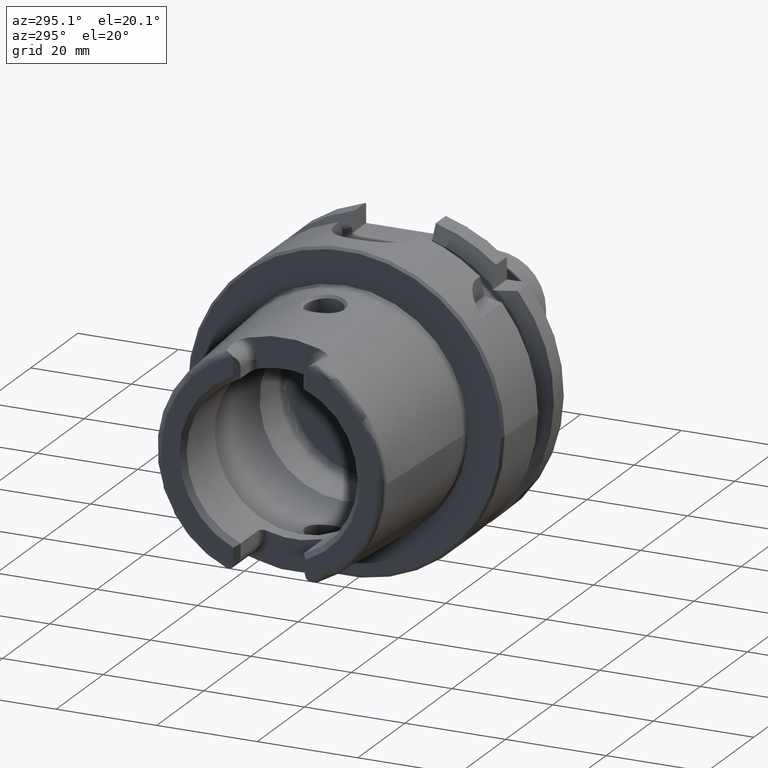
[diagram: clean part render]
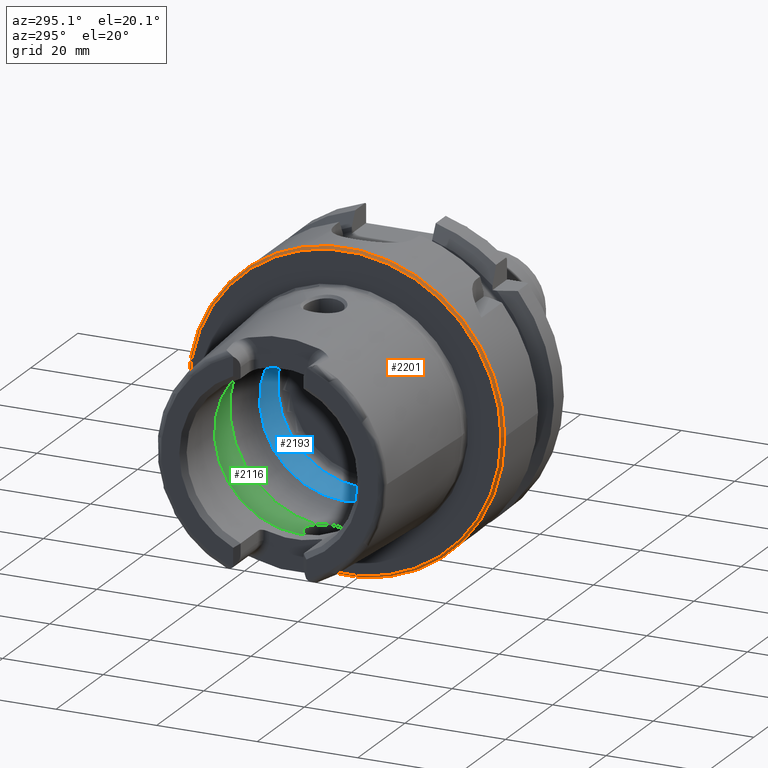
[diagram: same view with three faces highlighted in distinct colors, each labeled with its STEP entity id]
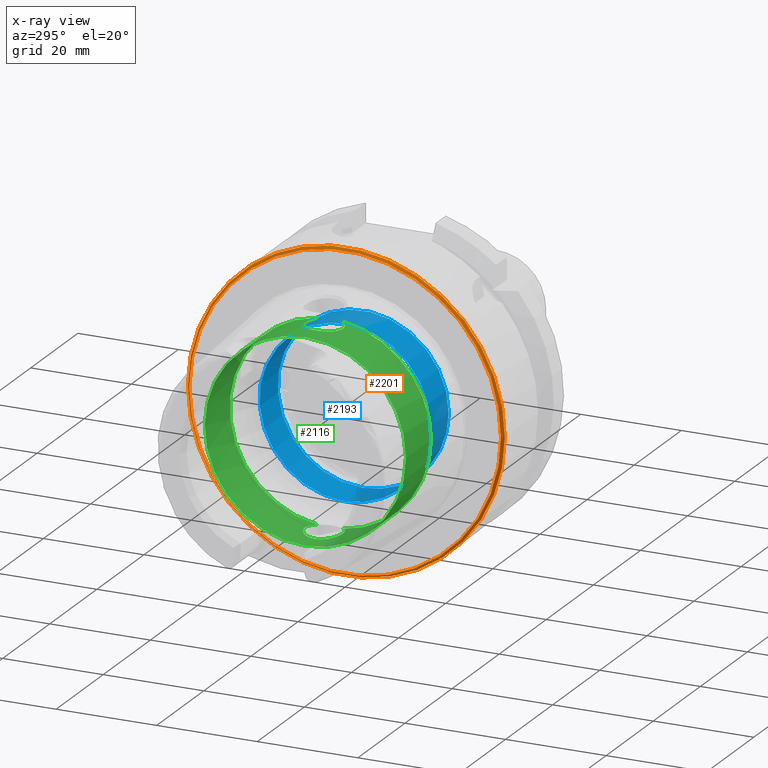
[diagram: x-ray of the same camera — body ghosted, the three highlighted faces saturated]
A machine part, auxiliary view with three faces highlighted in distinct colors.
The next image is the same camera in x-ray (body ghosted, the three faces saturated) — at least one of them is partly hidden behind the body in this view.
Their STEP definitions:

[orange] entity #2201 — the highlighted conical surface has half-angle 45 deg.
#351=FACE_OUTER_BOUND('',#492,.T.);
#492=EDGE_LOOP('',(#2058,#2059,#2060,#2061));
#602=LINE('',#4822,#712);
#712=VECTOR('',#3128,31.25);
#781=CIRCLE('',#2346,31.5);
#848=CIRCLE('',#2487,31.);
#992=VERTEX_POINT('',#4336);
#1065=VERTEX_POINT('',#4819);
#1253=EDGE_CURVE('',#992,#992,#781,.T.);
#1396=EDGE_CURVE('',#1065,#1065,#848,.T.);
#1397=EDGE_CURVE('',#992,#1065,#602,.T.);
#2058=ORIENTED_EDGE('',*,*,#1253,.F.);
#2059=ORIENTED_EDGE('',*,*,#1397,.T.);
#2060=ORIENTED_EDGE('',*,*,#1396,.T.);
#2061=ORIENTED_EDGE('',*,*,#1397,.F.);
#2076=CONICAL_SURFACE('',#2488,31.25,0.785398163397447);
#2201=ADVANCED_FACE('',(#351),#2076,.T.);
#2346=AXIS2_PLACEMENT_3D('',#4338,#2798,#2799);
#2487=AXIS2_PLACEMENT_3D('',#4820,#3124,#3125);
#2488=AXIS2_PLACEMENT_3D('',#4821,#3126,#3127);
#2798=DIRECTION('center_axis',(1.,0.,0.));
#2799=DIRECTION('ref_axis',(0.,0.,-1.));
#3124=DIRECTION('center_axis',(1.,0.,0.));
#3125=DIRECTION('ref_axis',(0.,0.,-1.));
#3126=DIRECTION('center_axis',(1.,0.,0.));
#3127=DIRECTION('ref_axis',(0.,1.,0.));
#3128=DIRECTION('',(-0.707106781186549,0.707106781186546,8.65956056235492E-17));
#4336=CARTESIAN_POINT('',(0.5,-31.5,-3.85763741731416E-15));
#4338=CARTESIAN_POINT('Origin',(0.5,0.,0.));
#4819=CARTESIAN_POINT('',(-1.04083408558608E-15,-31.,-3.7964050773568E-15));
#4820=CARTESIAN_POINT('Origin',(0.,0.,0.));
#4821=CARTESIAN_POINT('Origin',(0.249999999999999,0.,0.));
#4822=CARTESIAN_POINT('',(0.249999999999999,-31.25,-3.82702124733548E-15));

[blue] entity #2193 — the highlighted cylindrical surface (bore or boss wall) has radius 17 mm, axis along (-1, 0, 0).
#225=CYLINDRICAL_SURFACE('',#2468,17.);
#343=FACE_OUTER_BOUND('',#483,.T.);
#483=EDGE_LOOP('',(#2018,#2019,#2020,#2021,#2022,#2023));
#598=LINE('',#4789,#708);
#708=VECTOR('',#3084,17.);
#769=CIRCLE('',#2325,17.);
#770=CIRCLE('',#2326,17.);
#835=CIRCLE('',#2466,17.);
#836=CIRCLE('',#2467,17.);
#959=VERTEX_POINT('',#4148);
#960=VERTEX_POINT('',#4149);
#1055=VERTEX_POINT('',#4783);
#1056=VERTEX_POINT('',#4785);
#1212=EDGE_CURVE('',#959,#960,#769,.T.);
#1213=EDGE_CURVE('',#960,#959,#770,.T.);
#1379=EDGE_CURVE('',#1055,#1056,#835,.T.);
#1380=EDGE_CURVE('',#1056,#1055,#836,.T.);
#1381=EDGE_CURVE('',#1056,#959,#598,.T.);
#2018=ORIENTED_EDGE('',*,*,#1380,.F.);
#2019=ORIENTED_EDGE('',*,*,#1381,.T.);
#2020=ORIENTED_EDGE('',*,*,#1212,.T.);
#2021=ORIENTED_EDGE('',*,*,#1213,.T.);
#2022=ORIENTED_EDGE('',*,*,#1381,.F.);
#2023=ORIENTED_EDGE('',*,*,#1379,.F.);
#2193=ADVANCED_FACE('',(#343),#225,.F.);
#2325=AXIS2_PLACEMENT_3D('',#4150,#2739,#2740);
#2326=AXIS2_PLACEMENT_3D('',#4151,#2741,#2742);
#2466=AXIS2_PLACEMENT_3D('',#4786,#3078,#3079);
#2467=AXIS2_PLACEMENT_3D('',#4787,#3080,#3081);
#2468=AXIS2_PLACEMENT_3D('',#4788,#3082,#3083);
#2739=DIRECTION('center_axis',(-1.,0.,0.));
#2740=DIRECTION('ref_axis',(0.,0.,1.));
#2741=DIRECTION('center_axis',(-1.,0.,0.));
#2742=DIRECTION('ref_axis',(0.,0.,1.));
#3078=DIRECTION('center_axis',(-1.,0.,0.));
#3079=DIRECTION('ref_axis',(0.,0.,1.));
#3080=DIRECTION('center_axis',(-1.,0.,0.));
#3081=DIRECTION('ref_axis',(0.,0.,1.));
#3082=DIRECTION('center_axis',(-1.,0.,0.));
#3083=DIRECTION('ref_axis',(0.,1.,0.));
#3084=DIRECTION('',(-1.,0.,0.));
#4148=CARTESIAN_POINT('',(-0.0550020016016006,-17.,2.0818995585505E-15));
#4149=CARTESIAN_POINT('',(-0.0550020016016006,-2.0818995585505E-15,-17.));
#4150=CARTESIAN_POINT('Origin',(-0.0550020016016006,0.,0.));
#4151=CARTESIAN_POINT('Origin',(-0.0550020016016006,0.,0.));
#4783=CARTESIAN_POINT('',(7.67084380241115,-2.0818995585505E-15,-17.));
#4785=CARTESIAN_POINT('',(7.67084380241115,-17.,2.0818995585505E-15));
#4786=CARTESIAN_POINT('Origin',(7.67084380241115,0.,0.));
#4787=CARTESIAN_POINT('Origin',(7.67084380241115,0.,0.));
#4788=CARTESIAN_POINT('Origin',(3.80792090040477,0.,0.));
#4789=CARTESIAN_POINT('',(3.80792090040477,-17.,2.0818995585505E-15));

[green] entity #2116 — the highlighted cylindrical surface (bore or boss wall) has radius 20 mm, axis along (-1, 0, 0).
#59=B_SPLINE_CURVE_WITH_KNOTS('',3,(#3931,#3932,#3933,#3934,#3935,#3936,
#3937,#3938,#3939,#3940,#3941,#3942,#3943,#3944,#3945,#3946,#3947,#3948,
#3949,#3950,#3951,#3952,#3953,#3954,#3955,#3956,#3957,#3958,#3959,#3960,
#3961),.UNSPECIFIED.,.F.,.F.,(4,2,2,2,2,2,2,2,2,2,2,3,2,2,4),(-1.4231013878275,
-1.4161913421645,-1.27456976724955,-1.1329481923346,-0.991326617419658,
-0.849705042504712,-0.708089569336007,-0.566474096167302,-0.424858622998597,
-0.283243149829893,-0.141621574914947,0.,0.141621574914946,0.283243149829893,
0.290153195494658),.UNSPECIFIED.);
#64=B_SPLINE_CURVE_WITH_KNOTS('',3,(#4095,#4096,#4097,#4098,#4099,#4100,
#4101,#4102,#4103,#4104,#4105,#4106,#4107,#4108,#4109,#4110,#4111,#4112,
#4113,#4114,#4115,#4116,#4117,#4118,#4119,#4120,#4121,#4122,#4123,#4124,
#4125),.UNSPECIFIED.,.F.,.F.,(4,2,2,3,2,2,2,2,2,2,2,2,2,2,4),(-0.290153195492892,
-0.283243149829892,-0.141621574914946,0.,0.141621574914946,0.283243149829893,
0.424858622998597,0.566474096167302,0.708089569336007,0.849705042504712,
0.991326617419658,1.1329481923346,1.27456976724955,1.4161913421645,1.42310138782926),
 .UNSPECIFIED.);
#204=CYLINDRICAL_SURFACE('',#2318,20.);
#266=FACE_OUTER_BOUND('',#401,.T.);
#401=EDGE_LOOP('',(#1612,#1613,#1614,#1615,#1616,#1617,#1618,#1619,#1620));
#540=LINE('',#4141,#650);
#650=VECTOR('',#2728,20.);
#764=CIRCLE('',#2319,20.);
#765=CIRCLE('',#2320,20.);
#766=CIRCLE('',#2321,20.);
#767=CIRCLE('',#2322,20.);
#768=CIRCLE('',#2323,20.);
#949=VERTEX_POINT('',#3917);
#950=VERTEX_POINT('',#3930);
#953=VERTEX_POINT('',#4080);
#955=VERTEX_POINT('',#4094);
#956=VERTEX_POINT('',#4138);
#957=VERTEX_POINT('',#4140);
#958=VERTEX_POINT('',#4142);
#1197=EDGE_CURVE('',#950,#949,#59,.T.);
#1203=EDGE_CURVE('',#955,#953,#64,.T.);
#1206=EDGE_CURVE('',#956,#953,#764,.T.);
#1207=EDGE_CURVE('',#956,#957,#540,.T.);
#1208=EDGE_CURVE('',#957,#958,#765,.T.);
#1209=EDGE_CURVE('',#958,#957,#766,.T.);
#1210=EDGE_CURVE('',#950,#956,#767,.T.);
#1211=EDGE_CURVE('',#955,#949,#768,.T.);
#1612=ORIENTED_EDGE('',*,*,#1203,.T.);
#1613=ORIENTED_EDGE('',*,*,#1206,.F.);
#1614=ORIENTED_EDGE('',*,*,#1207,.T.);
#1615=ORIENTED_EDGE('',*,*,#1208,.T.);
#1616=ORIENTED_EDGE('',*,*,#1209,.T.);
#1617=ORIENTED_EDGE('',*,*,#1207,.F.);
#1618=ORIENTED_EDGE('',*,*,#1210,.F.);
#1619=ORIENTED_EDGE('',*,*,#1197,.T.);
#1620=ORIENTED_EDGE('',*,*,#1211,.F.);
#2116=ADVANCED_FACE('',(#266),#204,.F.);
#2318=AXIS2_PLACEMENT_3D('',#4137,#2724,#2725);
#2319=AXIS2_PLACEMENT_3D('',#4139,#2726,#2727);
#2320=AXIS2_PLACEMENT_3D('',#4143,#2729,#2730);
#2321=AXIS2_PLACEMENT_3D('',#4144,#2731,#2732);
#2322=AXIS2_PLACEMENT_3D('',#4145,#2733,#2734);
#2323=AXIS2_PLACEMENT_3D('',#4146,#2735,#2736);
#2724=DIRECTION('center_axis',(-1.,0.,0.));
#2725=DIRECTION('ref_axis',(0.,1.,0.));
#2726=DIRECTION('center_axis',(-1.,0.,0.));
#2727=DIRECTION('ref_axis',(0.,0.,1.));
#2728=DIRECTION('',(-1.,0.,0.));
#2729=DIRECTION('center_axis',(-1.,0.,0.));
#2730=DIRECTION('ref_axis',(0.,0.,1.));
#2731=DIRECTION('center_axis',(-1.,0.,0.));
#2732=DIRECTION('ref_axis',(0.,0.,1.));
#2733=DIRECTION('center_axis',(-1.,0.,0.));
#2734=DIRECTION('ref_axis',(0.,0.,1.));
#2735=DIRECTION('center_axis',(-1.,0.,0.));
#2736=DIRECTION('ref_axis',(0.,0.,1.));
#3917=CARTESIAN_POINT('',(-6.3,2.60240273593462,-19.8299646999182));
#3930=CARTESIAN_POINT('',(-6.3,-2.60240273593462,-19.8299646999182));
#3931=CARTESIAN_POINT('Ctrl Pts',(-6.3,-2.60240273593462,-19.8299646999182));
#3932=CARTESIAN_POINT('Ctrl Pts',(-6.31601537193754,-2.61901872839199,-19.8277840856364));
#3933=CARTESIAN_POINT('Ctrl Pts',(-6.33213480647885,-2.63543566537795,-19.82560835073));
#3934=CARTESIAN_POINT('Ctrl Pts',(-6.68067160381732,-2.98397246271642,-19.7789868876592));
#3935=CARTESIAN_POINT('Ctrl Pts',(-7.10159661632629,-3.27238367725626,-19.731429741537));
#3936=CARTESIAN_POINT('Ctrl Pts',(-8.0251754070192,-3.65542701546408,-19.6640704965084));
#3937=CARTESIAN_POINT('Ctrl Pts',(-8.52792808361685,-3.75,-19.6452920568771));
#3938=CARTESIAN_POINT('Ctrl Pts',(-9.47207191638316,-3.75,-19.6452920568771));
#3939=CARTESIAN_POINT('Ctrl Pts',(-9.97482459298081,-3.65542701546407,-19.6640704965084));
#3940=CARTESIAN_POINT('Ctrl Pts',(-10.8984033836737,-3.27238367725626,-19.731429741537));
#3941=CARTESIAN_POINT('Ctrl Pts',(-11.3193283961827,-2.98397246271642,-19.7789868876592));
#3942=CARTESIAN_POINT('Ctrl Pts',(-11.9839581446669,-2.31934271423217,-19.8678900149943));
#3943=CARTESIAN_POINT('Ctrl Pts',(-12.2723805817074,-1.89841159537053,-19.9150796801946));
#3944=CARTESIAN_POINT('Ctrl Pts',(-12.6554320620407,-0.974811677040412,
-19.9815942165963));
#3945=CARTESIAN_POINT('Ctrl Pts',(-12.75,-0.472051577229018,-20.));
#3946=CARTESIAN_POINT('Ctrl Pts',(-12.75,0.472051577229015,-20.));
#3947=CARTESIAN_POINT('Ctrl Pts',(-12.6554320620407,0.97481167704041,-19.9815942165963));
#3948=CARTESIAN_POINT('Ctrl Pts',(-12.2723805817074,1.89841159537052,-19.9150796801946));
#3949=CARTESIAN_POINT('Ctrl Pts',(-11.9839581446669,2.31934271423217,-19.8678900149943));
#3950=CARTESIAN_POINT('Ctrl Pts',(-11.3193283961827,2.98397246271642,-19.7789868876592));
#3951=CARTESIAN_POINT('Ctrl Pts',(-10.8984033836737,3.27238367725626,-19.731429741537));
#3952=CARTESIAN_POINT('Ctrl Pts',(-9.97482459298081,3.65542701546408,-19.6640704965084));
#3953=CARTESIAN_POINT('Ctrl Pts',(-9.47207191638316,3.75,-19.6452920568771));
#3954=CARTESIAN_POINT('Ctrl Pts',(-9.,3.75,-19.6452920568771));
#3955=CARTESIAN_POINT('Ctrl Pts',(-8.52792808361685,3.75,-19.6452920568771));
#3956=CARTESIAN_POINT('Ctrl Pts',(-8.0251754070192,3.65542701546408,-19.6640704965084));
#3957=CARTESIAN_POINT('Ctrl Pts',(-7.10159661632629,3.27238367725626,-19.731429741537));
#3958=CARTESIAN_POINT('Ctrl Pts',(-6.68067160381732,2.98397246271642,-19.7789868876592));
#3959=CARTESIAN_POINT('Ctrl Pts',(-6.3321348064747,2.6354356653738,-19.8256083507306));
#3960=CARTESIAN_POINT('Ctrl Pts',(-6.31601537193366,2.61901872838797,-19.8277840856369));
#3961=CARTESIAN_POINT('Ctrl Pts',(-6.3,2.60240273593462,-19.8299646999182));
#4080=CARTESIAN_POINT('',(-6.3,-2.60240273593462,19.8299646999182));
#4094=CARTESIAN_POINT('',(-6.3,2.60240273593462,19.8299646999182));
#4095=CARTESIAN_POINT('Ctrl Pts',(-6.3,2.60240273593462,19.8299646999182));
#4096=CARTESIAN_POINT('Ctrl Pts',(-6.31601537193753,2.61901872839199,19.8277840856364));
#4097=CARTESIAN_POINT('Ctrl Pts',(-6.33213480647884,2.63543566537795,19.82560835073));
#4098=CARTESIAN_POINT('Ctrl Pts',(-6.68067160381732,2.98397246271642,19.7789868876592));
#4099=CARTESIAN_POINT('Ctrl Pts',(-7.10159661632629,3.27238367725626,19.731429741537));
#4100=CARTESIAN_POINT('Ctrl Pts',(-8.0251754070192,3.65542701546408,19.6640704965084));
#4101=CARTESIAN_POINT('Ctrl Pts',(-8.52792808361685,3.75,19.6452920568771));
#4102=CARTESIAN_POINT('Ctrl Pts',(-9.,3.75,19.6452920568771));
#4103=CARTESIAN_POINT('Ctrl Pts',(-9.47207191638315,3.75,19.6452920568771));
#4104=CARTESIAN_POINT('Ctrl Pts',(-9.9748245929808,3.65542701546408,19.6640704965084));
#4105=CARTESIAN_POINT('Ctrl Pts',(-10.8984033836737,3.27238367725626,19.731429741537));
#4106=CARTESIAN_POINT('Ctrl Pts',(-11.3193283961827,2.98397246271642,19.7789868876592));
#4107=CARTESIAN_POINT('Ctrl Pts',(-11.9839581446669,2.31934271423217,19.8678900149943));
#4108=CARTESIAN_POINT('Ctrl Pts',(-12.2723805817074,1.89841159537052,19.9150796801946));
#4109=CARTESIAN_POINT('Ctrl Pts',(-12.6554320620407,0.97481167704041,19.9815942165963));
#4110=CARTESIAN_POINT('Ctrl Pts',(-12.75,0.472051577229015,20.));
#4111=CARTESIAN_POINT('Ctrl Pts',(-12.75,-0.472051577229017,20.));
#4112=CARTESIAN_POINT('Ctrl Pts',(-12.6554320620407,-0.974811677040414,
19.9815942165963));
#4113=CARTESIAN_POINT('Ctrl Pts',(-12.2723805817074,-1.89841159537053,19.9150796801946));
#4114=CARTESIAN_POINT('Ctrl Pts',(-11.9839581446669,-2.31934271423217,19.8678900149943));
#4115=CARTESIAN_POINT('Ctrl Pts',(-11.3193283961827,-2.98397246271642,19.7789868876592));
#4116=CARTESIAN_POINT('Ctrl Pts',(-10.8984033836737,-3.27238367725626,19.731429741537));
#4117=CARTESIAN_POINT('Ctrl Pts',(-9.9748245929808,-3.65542701546407,19.6640704965084));
#4118=CARTESIAN_POINT('Ctrl Pts',(-9.47207191638315,-3.75,19.6452920568771));
#4119=CARTESIAN_POINT('Ctrl Pts',(-8.52792808361684,-3.75,19.6452920568771));
#4120=CARTESIAN_POINT('Ctrl Pts',(-8.02517540701919,-3.65542701546407,19.6640704965084));
#4121=CARTESIAN_POINT('Ctrl Pts',(-7.10159661632629,-3.27238367725626,19.731429741537));
#4122=CARTESIAN_POINT('Ctrl Pts',(-6.68067160381732,-2.98397246271642,19.7789868876592));
#4123=CARTESIAN_POINT('Ctrl Pts',(-6.3321348064747,-2.6354356653738,19.8256083507306));
#4124=CARTESIAN_POINT('Ctrl Pts',(-6.31601537193366,-2.61901872838797,19.8277840856369));
#4125=CARTESIAN_POINT('Ctrl Pts',(-6.3,-2.60240273593462,19.8299646999182));
#4137=CARTESIAN_POINT('Origin',(-11.6087822173509,0.,0.));
#4138=CARTESIAN_POINT('',(-6.3,-20.,2.44929359829471E-15));
#4139=CARTESIAN_POINT('Origin',(-6.3,0.,0.));
#4140=CARTESIAN_POINT('',(-16.9175644347018,-20.,2.44929359829471E-15));
#4141=CARTESIAN_POINT('',(-11.6087822173509,-20.,2.44929359829471E-15));
#4142=CARTESIAN_POINT('',(-16.9175644347018,-2.44929359829471E-15,-20.));
#4143=CARTESIAN_POINT('Origin',(-16.9175644347018,0.,0.));
#4144=CARTESIAN_POINT('Origin',(-16.9175644347018,0.,0.));
#4145=CARTESIAN_POINT('Origin',(-6.3,0.,0.));
#4146=CARTESIAN_POINT('Origin',(-6.3,0.,0.));